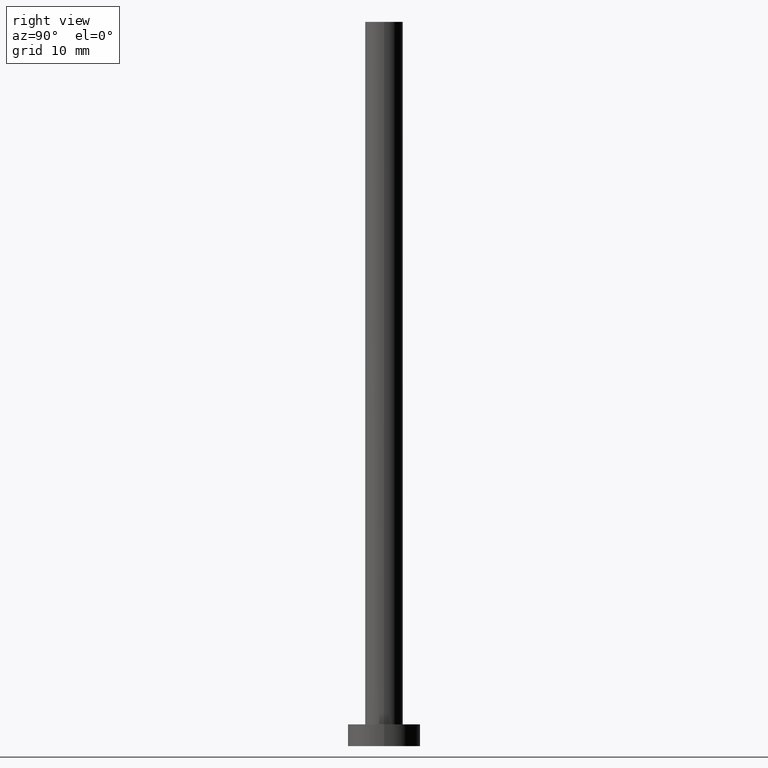
[diagram: clean part render]
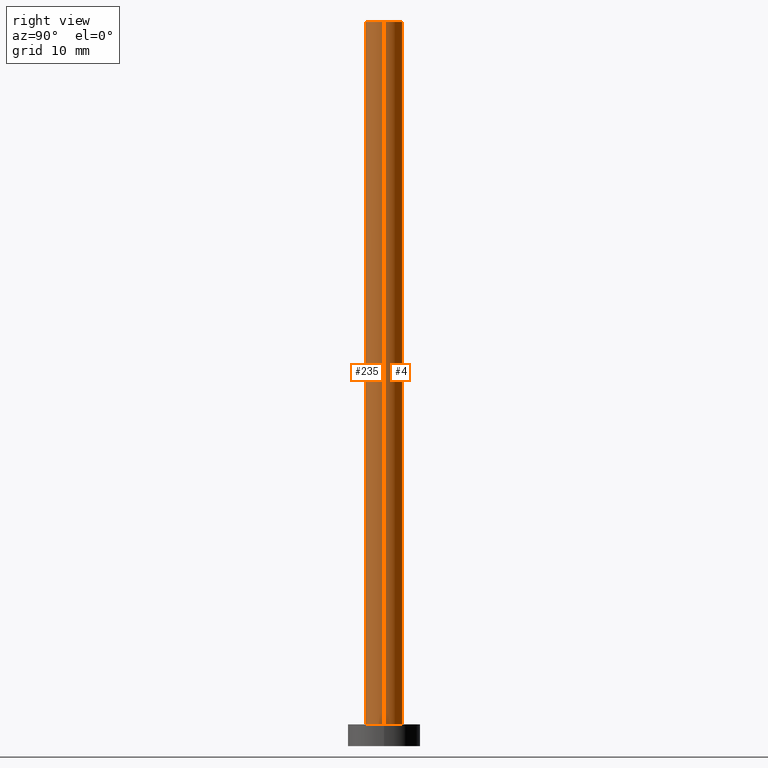
[diagram: same view with one multi-face feature highlighted, each face labeled with its STEP entity id]
A machine part, right view. The highlighted faces form ONE feature: a constant-radius fillet chain: 2 tangent blend faces with common blend radius 2.6 mm. The faces share edges in the B-rep.
Their STEP definitions:
[1] entity #235 (Cylinder):
#2 = CARTESIAN_POINT ( 'NONE',  ( 0.000000000000000000, 0.000000000000000000, 100.0000000000000000 ) ) ;
#6 = VECTOR ( 'NONE', #206, 1000.000000000000000 ) ;
#8 = DIRECTION ( 'NONE',  ( 0.000000000000000000, 0.000000000000000000, 1.000000000000000000 ) ) ;
#17 = LINE ( 'NONE', #42, #242 ) ;
#22 = DIRECTION ( 'NONE',  ( -1.000000000000000000, 0.000000000000000000, 0.000000000000000000 ) ) ;
#26 = CARTESIAN_POINT ( 'NONE',  ( -2.600000000000000089, 0.000000000000000000, 100.0000000000000000 ) ) ;
#36 = ORIENTED_EDGE ( 'NONE', *, *, #80, .F. ) ;
#42 = CARTESIAN_POINT ( 'NONE',  ( 2.600000000000000089, 3.184081677783117698E-16, 100.0000000000000000 ) ) ;
#48 = EDGE_CURVE ( 'NONE', #192, #75, #183, .T. ) ;
#75 = VERTEX_POINT ( 'NONE', #94 ) ;
#80 = EDGE_CURVE ( 'NONE', #75, #90, #17, .T. ) ;
#85 = CIRCLE ( 'NONE', #204, 2.600000000000000089 ) ;
#90 = VERTEX_POINT ( 'NONE', #118 ) ;
#94 = CARTESIAN_POINT ( 'NONE',  ( 2.600000000000000089, 3.184081677783117698E-16, 100.0000000000000000 ) ) ;
#101 = CARTESIAN_POINT ( 'NONE',  ( 0.000000000000000000, 0.000000000000000000, 100.0000000000000000 ) ) ;
#104 = FACE_OUTER_BOUND ( 'NONE', #110, .T. ) ;
#110 = EDGE_LOOP ( 'NONE', ( #36, #233, #158, #199 ) ) ;
#118 = CARTESIAN_POINT ( 'NONE',  ( 2.600000000000000089, 3.184081677783117698E-16, 3.000000000000000000 ) ) ;
#121 = CYLINDRICAL_SURFACE ( 'NONE', #214, 2.600000000000000089 ) ;
#123 = EDGE_CURVE ( 'NONE', #192, #253, #127, .T. ) ;
#127 = LINE ( 'NONE', #26, #6 ) ;
#137 = DIRECTION ( 'NONE',  ( 0.000000000000000000, 0.000000000000000000, 1.000000000000000000 ) ) ;
#144 = CARTESIAN_POINT ( 'NONE',  ( 0.000000000000000000, 0.000000000000000000, 3.000000000000000000 ) ) ;
#146 = CARTESIAN_POINT ( 'NONE',  ( -2.600000000000000089, 0.000000000000000000, 100.0000000000000000 ) ) ;
#148 = DIRECTION ( 'NONE',  ( -0.000000000000000000, -0.000000000000000000, -1.000000000000000000 ) ) ;
#158 = ORIENTED_EDGE ( 'NONE', *, *, #123, .T. ) ;
#161 = AXIS2_PLACEMENT_3D ( 'NONE', #2, #137, #195 ) ;
#183 = CIRCLE ( 'NONE', #161, 2.600000000000000089 ) ;
#192 = VERTEX_POINT ( 'NONE', #146 ) ;
#195 = DIRECTION ( 'NONE',  ( 1.000000000000000000, 0.000000000000000000, 0.000000000000000000 ) ) ;
#199 = ORIENTED_EDGE ( 'NONE', *, *, #255, .T. ) ;
#203 = DIRECTION ( 'NONE',  ( 1.000000000000000000, 0.000000000000000000, 0.000000000000000000 ) ) ;
#204 = AXIS2_PLACEMENT_3D ( 'NONE', #144, #8, #203 ) ;
#206 = DIRECTION ( 'NONE',  ( -0.000000000000000000, -0.000000000000000000, -1.000000000000000000 ) ) ;
#214 = AXIS2_PLACEMENT_3D ( 'NONE', #101, #148, #22 ) ;
#226 = CARTESIAN_POINT ( 'NONE',  ( -2.600000000000000089, 0.000000000000000000, 3.000000000000000000 ) ) ;
#233 = ORIENTED_EDGE ( 'NONE', *, *, #48, .F. ) ;
#235 = ADVANCED_FACE ( 'NONE', ( #104 ), #121, .T. ) ;
#238 = DIRECTION ( 'NONE',  ( -0.000000000000000000, -0.000000000000000000, -1.000000000000000000 ) ) ;
#242 = VECTOR ( 'NONE', #238, 1000.000000000000000 ) ;
#253 = VERTEX_POINT ( 'NONE', #226 ) ;
#255 = EDGE_CURVE ( 'NONE', #253, #90, #85, .T. ) ;
[2] entity #4 (Cylinder):
#4 = ADVANCED_FACE ( 'NONE', ( #81 ), #160, .T. ) ;
#6 = VECTOR ( 'NONE', #206, 1000.000000000000000 ) ;
#7 = AXIS2_PLACEMENT_3D ( 'NONE', #106, #243, #221 ) ;
#17 = LINE ( 'NONE', #42, #242 ) ;
#26 = CARTESIAN_POINT ( 'NONE',  ( -2.600000000000000089, 0.000000000000000000, 100.0000000000000000 ) ) ;
#42 = CARTESIAN_POINT ( 'NONE',  ( 2.600000000000000089, 3.184081677783117698E-16, 100.0000000000000000 ) ) ;
#46 = DIRECTION ( 'NONE',  ( 1.000000000000000000, 0.000000000000000000, 0.000000000000000000 ) ) ;
#75 = VERTEX_POINT ( 'NONE', #94 ) ;
#79 = ORIENTED_EDGE ( 'NONE', *, *, #191, .T. ) ;
#80 = EDGE_CURVE ( 'NONE', #75, #90, #17, .T. ) ;
#81 = FACE_OUTER_BOUND ( 'NONE', #240, .T. ) ;
#82 = CARTESIAN_POINT ( 'NONE',  ( 0.000000000000000000, 0.000000000000000000, 3.000000000000000000 ) ) ;
#90 = VERTEX_POINT ( 'NONE', #118 ) ;
#94 = CARTESIAN_POINT ( 'NONE',  ( 2.600000000000000089, 3.184081677783117698E-16, 100.0000000000000000 ) ) ;
#98 = DIRECTION ( 'NONE',  ( -0.000000000000000000, -0.000000000000000000, -1.000000000000000000 ) ) ;
#100 = ORIENTED_EDGE ( 'NONE', *, *, #80, .T. ) ;
#106 = CARTESIAN_POINT ( 'NONE',  ( 0.000000000000000000, 0.000000000000000000, 100.0000000000000000 ) ) ;
#118 = CARTESIAN_POINT ( 'NONE',  ( 2.600000000000000089, 3.184081677783117698E-16, 3.000000000000000000 ) ) ;
#122 = CIRCLE ( 'NONE', #7, 2.600000000000000089 ) ;
#123 = EDGE_CURVE ( 'NONE', #192, #253, #127, .T. ) ;
#127 = LINE ( 'NONE', #26, #6 ) ;
#129 = AXIS2_PLACEMENT_3D ( 'NONE', #139, #98, #216 ) ;
#139 = CARTESIAN_POINT ( 'NONE',  ( 0.000000000000000000, 0.000000000000000000, 100.0000000000000000 ) ) ;
#146 = CARTESIAN_POINT ( 'NONE',  ( -2.600000000000000089, 0.000000000000000000, 100.0000000000000000 ) ) ;
#154 = ORIENTED_EDGE ( 'NONE', *, *, #123, .F. ) ;
#160 = CYLINDRICAL_SURFACE ( 'NONE', #129, 2.600000000000000089 ) ;
#167 = DIRECTION ( 'NONE',  ( 0.000000000000000000, 0.000000000000000000, 1.000000000000000000 ) ) ;
#168 = EDGE_CURVE ( 'NONE', #75, #192, #122, .T. ) ;
#173 = ORIENTED_EDGE ( 'NONE', *, *, #168, .F. ) ;
#184 = AXIS2_PLACEMENT_3D ( 'NONE', #82, #167, #46 ) ;
#191 = EDGE_CURVE ( 'NONE', #90, #253, #200, .T. ) ;
#192 = VERTEX_POINT ( 'NONE', #146 ) ;
#200 = CIRCLE ( 'NONE', #184, 2.600000000000000089 ) ;
#206 = DIRECTION ( 'NONE',  ( -0.000000000000000000, -0.000000000000000000, -1.000000000000000000 ) ) ;
#216 = DIRECTION ( 'NONE',  ( -1.000000000000000000, 0.000000000000000000, 0.000000000000000000 ) ) ;
#221 = DIRECTION ( 'NONE',  ( 1.000000000000000000, 0.000000000000000000, 0.000000000000000000 ) ) ;
#226 = CARTESIAN_POINT ( 'NONE',  ( -2.600000000000000089, 0.000000000000000000, 3.000000000000000000 ) ) ;
#238 = DIRECTION ( 'NONE',  ( -0.000000000000000000, -0.000000000000000000, -1.000000000000000000 ) ) ;
#240 = EDGE_LOOP ( 'NONE', ( #173, #100, #79, #154 ) ) ;
#242 = VECTOR ( 'NONE', #238, 1000.000000000000000 ) ;
#243 = DIRECTION ( 'NONE',  ( 0.000000000000000000, 0.000000000000000000, 1.000000000000000000 ) ) ;
#253 = VERTEX_POINT ( 'NONE', #226 ) ;